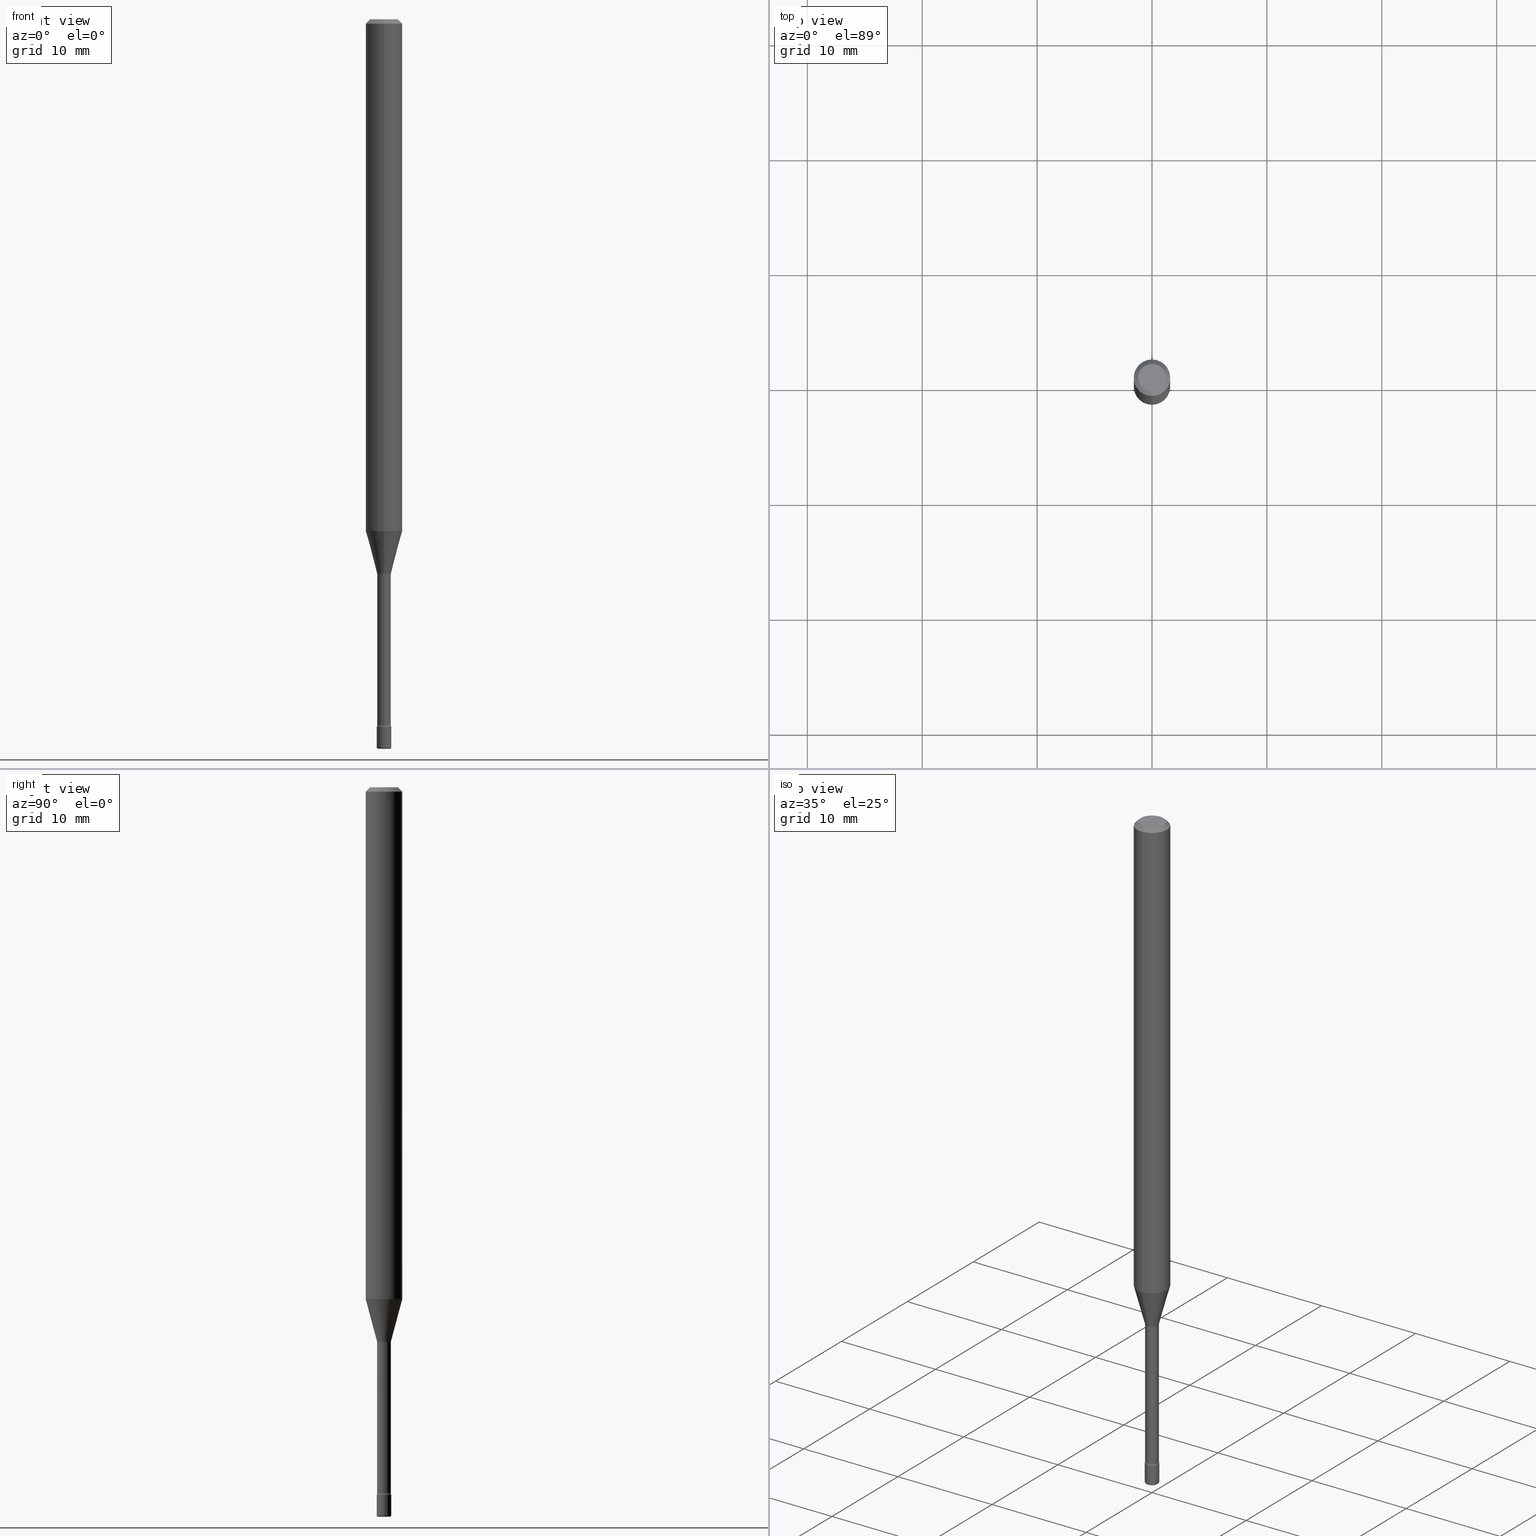
[diagram: canonical four-view strip — front | top / right | iso, engineering-drawing reading convention]
A machine part, canonical four-view strip (front | top / right | iso — engineering-drawing reading convention). The complete STEP part file that produces these views, byte-faithful:
ISO-10303-21;
HEADER;
FILE_DESCRIPTION (( 'STEP AP203' ),
    '1' );
FILE_NAME ('08814.STEP',
    '2024-03-06T20:03:34',
    ( '' ),
    ( '' ),
    'SwSTEP 2.0',
    'SolidWorks 2023',
    '' );
FILE_SCHEMA (( 'CONFIG_CONTROL_DESIGN' ));
ENDSEC;

DATA;
#1 = DIRECTION ( 'NONE',  ( -6.982962677686265133E-15, -1.000000000000000000, 0.000000000000000000 ) ) ;
#2 = DIRECTION ( 'NONE',  ( -2.445458409573931244E-29, 3.491496227382129512E-15, 1.000000000000000000 ) ) ;
#3 = ADVANCED_FACE ( 'NONE', ( #251 ), #265, .F. ) ;
#4 = FACE_OUTER_BOUND ( 'NONE', #191, .T. ) ;
#5 = EDGE_CURVE ( 'NONE', #472, #345, #359, .T. ) ;
#6 = CONICAL_SURFACE ( 'NONE', #190, 0.02401111260566398189, 0.2617993877991502960 ) ;
#7 = CARTESIAN_POINT ( 'NONE',  ( 4.651200238800969126E-29, -6.640737795005825255E-15, -1.901974787463811323 ) ) ;
#8 = CARTESIAN_POINT ( 'NONE',  ( 3.668187614360904294E-31, -5.237244341073204376E-17, -0.01500000000000002720 ) ) ;
#9 = DIRECTION ( 'NONE',  ( -6.982962677686265133E-15, -1.000000000000000000, 0.000000000000000000 ) ) ;
#10 = LINE ( 'NONE', #97, #153 ) ;
#11 = AXIS2_PLACEMENT_3D ( 'NONE', #54, #220, #9 ) ;
#12 = CC_DESIGN_PERSON_AND_ORGANIZATION_ASSIGNMENT ( #76, #197, ( #111 ) ) ;
#13 = AXIS2_PLACEMENT_3D ( 'NONE', #258, #533, #529 ) ;
#14 = CIRCLE ( 'NONE', #536, 0.02350000000000000352 ) ;
#15 = DIMENSIONAL_EXPONENTS ( 1.000000000000000000, 0.000000000000000000, 0.000000000000000000, 0.000000000000000000, 0.000000000000000000, 0.000000000000000000, 0.000000000000000000 ) ;
#16 = ADVANCED_FACE ( 'NONE', ( #83 ), #531, .T. ) ;
#17 = VERTEX_POINT ( 'NONE', #524 ) ;
#18 = EDGE_CURVE ( 'NONE', #343, #204, #222, .T. ) ;
#19 = EDGE_LOOP ( 'NONE', ( #239, #75, #296, #341 ) ) ;
#20 = VECTOR ( 'NONE', #506, 39.37007874015748143 ) ;
#21 = LOCAL_TIME ( 15, 3, 34.00000000000000000, #562 ) ;
#22 = CARTESIAN_POINT ( 'NONE',  ( 4.651220012893355916E-29, -6.640709477380055554E-15, -1.901974787463811323 ) ) ;
#23 = VERTEX_POINT ( 'NONE', #123 ) ;
#24 = ADVANCED_FACE ( 'NONE', ( #167 ), #430, .F. ) ;
#25 = ORIENTED_EDGE ( 'NONE', *, *, #495, .F. ) ;
#26 = DIRECTION ( 'NONE',  ( 4.937700262164546464E-15, 0.7071067811865449082, -0.7071067811865501263 ) ) ;
#27 = CARTESIAN_POINT ( 'NONE',  ( 6.101444671431917961E-29, -8.711245940413649907E-15, -2.495000000000000551 ) ) ;
#28 = ORIENTED_EDGE ( 'NONE', *, *, #470, .T. ) ;
#29 = DIRECTION ( 'NONE',  ( -2.445468806185136597E-29, 3.491481338843145583E-15, 1.000000000000000000 ) ) ;
#30 = CARTESIAN_POINT ( 'NONE',  ( -0.02000000000000000042, -8.560102528214734347E-15, -2.499999999999999556 ) ) ;
#31 = VERTEX_POINT ( 'NONE', #353 ) ;
#32 = CONICAL_SURFACE ( 'NONE', #501, 0.06250000000000000000, 0.7853981633974480570 ) ;
#33 = PERSON_AND_ORGANIZATION ( #66, #128 ) ;
#34 = DIRECTION ( 'NONE',  ( -2.445458409573931525E-29, 3.491496227382129512E-15, 1.000000000000000000 ) ) ;
#35 = DIRECTION ( 'NONE',  ( 7.105427357601001859E-15, 1.000000000000000000, 0.000000000000000000 ) ) ;
#36 = DIRECTION ( 'NONE',  ( -2.445458409573931525E-29, 3.491496227382129512E-15, 1.000000000000000000 ) ) ;
#37 = APPROVAL ( #340, 'UNSPECIFIED' ) ;
#38 = APPROVAL_STATUS ( 'not_yet_approved' ) ;
#39 = CARTESIAN_POINT ( 'NONE',  ( 3.316907271900976589E-16, 0.04750000000000000749, 5.964638864920299197E-17 ) ) ;
#40 = AXIS2_PLACEMENT_3D ( 'NONE', #27, #323, #233 ) ;
#41 = CALENDAR_DATE ( 2024, 6, 3 ) ;
#42 = CIRCLE ( 'NONE', #40, 0.02499999999999999792 ) ;
#43 = ADVANCED_FACE ( 'NONE', ( #165 ), #295, .F. ) ;
#44 = DIRECTION ( 'NONE',  ( -2.445458409573931525E-29, 3.491496227382129512E-15, 1.000000000000000000 ) ) ;
#45 = DIRECTION ( 'NONE',  ( -2.445468806185136597E-29, 3.491481338843145583E-15, 1.000000000000000000 ) ) ;
#46 = EDGE_CURVE ( 'NONE', #151, #449, #460, .T. ) ;
#47 = DIRECTION ( 'NONE',  ( 6.982962677686265922E-15, 1.000000000000000000, -3.491496227382129512E-15 ) ) ;
#48 = CARTESIAN_POINT ( 'NONE',  ( 6.113672015462840371E-29, -8.728703347107863365E-15, -2.499999999999999556 ) ) ;
#49 = DIRECTION ( 'NONE',  ( -6.982962677686265922E-15, -1.000000000000000000, 0.000000000000000000 ) ) ;
#50 = ORIENTED_EDGE ( 'NONE', *, *, #125, .T. ) ;
#51 = ORIENTED_EDGE ( 'NONE', *, *, #518, .T. ) ;
#52 = EDGE_CURVE ( 'NONE', #472, #23, #210, .T. ) ;
#53 = ORIENTED_EDGE ( 'NONE', *, *, #402, .F. ) ;
#54 = CARTESIAN_POINT ( 'NONE',  ( 4.641706270644910592E-29, -6.627182809212572482E-15, -1.898092501787273401 ) ) ;
#55 = CARTESIAN_POINT ( 'NONE',  ( -4.287811248607203282E-16, -0.06250000000000005551, -0.01499999999999981036 ) ) ;
#56 = CARTESIAN_POINT ( 'NONE',  ( -0.02500000000000000139, -8.411408409614115509E-15, -2.425000000000000266 ) ) ;
#57 = MECHANICAL_CONTEXT ( 'NONE', #89, 'mechanical' ) ;
#58 = AXIS2_PLACEMENT_3D ( 'NONE', #266, #357, #535 ) ;
#59 = AXIS2_PLACEMENT_3D ( 'NONE', #60, #410, #224 ) ;
#60 = CARTESIAN_POINT ( 'NONE',  ( -1.169113584055446105E-44, 1.669184350826100908E-30, 4.780733988912460139E-16 ) ) ;
#61 = CIRCLE ( 'NONE', #11, 0.02401111260566398189 ) ;
#62 = EDGE_LOOP ( 'NONE', ( #166, #65 ) ) ;
#63 = CARTESIAN_POINT ( 'NONE',  ( 3.668187614360904294E-31, -5.237244341073204376E-17, -0.01500000000000002720 ) ) ;
#64 = EDGE_CURVE ( 'NONE', #419, #406, #154, .T. ) ;
#65 = ORIENTED_EDGE ( 'NONE', *, *, #465, .F. ) ;
#66 = PERSON ( 'UNSPECIFIED', 'UNSPECIFIED', 'UNSPECIFIED', ('UNSPECIFIED'), ('UNSPECIFIED'), ('UNSPECIFIED') ) ;
#67 = DIRECTION ( 'NONE',  ( -6.982962677686265922E-15, -1.000000000000000000, 3.491496227382129512E-15 ) ) ;
#68 = CARTESIAN_POINT ( 'NONE',  ( 4.440892098500625669E-16, 0.06250000000000000000, 2.598548846798629687E-16 ) ) ;
#69 = AXIS2_PLACEMENT_3D ( 'NONE', #261, #484, #428 ) ;
#70 = ORIENTED_EDGE ( 'NONE', *, *, #18, .T. ) ;
#71 = CIRCLE ( 'NONE', #182, 0.004999999999999767651 ) ;
#72 = VERTEX_POINT ( 'NONE', #127 ) ;
#73 = EDGE_CURVE ( 'NONE', #204, #345, #476, .T. ) ;
#74 = DIRECTION ( 'NONE',  ( 1.000000000000000000, -6.982962677686284065E-15, 0.000000000000000000 ) ) ;
#75 = ORIENTED_EDGE ( 'NONE', *, *, #546, .T. ) ;
#76 = PERSON_AND_ORGANIZATION ( #66, #128 ) ;
#77 = DIRECTION ( 'NONE',  ( -2.445468806185136597E-29, 3.491481338843145583E-15, 1.000000000000000000 ) ) ;
#78 = CYLINDRICAL_SURFACE ( 'NONE', #395, 0.02349999999999997230 ) ;
#79 = SECURITY_CLASSIFICATION ( '', '', #380 ) ;
#80 = CIRCLE ( 'NONE', #100, 0.02500000000000000139 ) ;
#81 = CARTESIAN_POINT ( 'NONE',  ( 2.735589532676850122E-16, 0.03849999999999335204, -1.901974787463811323 ) ) ;
#82 = PERSON_AND_ORGANIZATION ( #66, #128 ) ;
#83 = FACE_OUTER_BOUND ( 'NONE', #147, .T. ) ;
#84 = CC_DESIGN_DATE_AND_TIME_ASSIGNMENT ( #418, #242, ( #385 ) ) ;
#85 = ORIENTED_EDGE ( 'NONE', *, *, #18, .F. ) ;
#86 = DIRECTION ( 'NONE',  ( -2.445458409573931525E-29, 3.491496227382129512E-15, 1.000000000000000000 ) ) ;
#87 = CARTESIAN_POINT ( 'NONE',  ( -1.640996229256270547E-16, -0.02349999999999997230, 5.601235602347259253E-16 ) ) ;
#88 = DIRECTION ( 'NONE',  ( -2.445468806185136597E-29, 3.491481338843145583E-15, 1.000000000000000000 ) ) ;
#89 = APPLICATION_CONTEXT ( 'configuration controlled 3d designs of mechanical parts and assemblies' ) ;
#90 = DIRECTION ( 'NONE',  ( -6.982962677686265133E-15, -1.000000000000000000, 3.491496227382129118E-15 ) ) ;
#91 = TOROIDAL_SURFACE ( 'NONE', #461, 0.03849999999999999256, 0.01500000000000001853 ) ;
#92 = ADVANCED_FACE ( 'NONE', ( #304 ), #305, .T. ) ;
#93 = AXIS2_PLACEMENT_3D ( 'NONE', #338, #500, #451 ) ;
#94 = FACE_OUTER_BOUND ( 'NONE', #19, .T. ) ;
#95 = ORIENTED_EDGE ( 'NONE', *, *, #437, .T. ) ;
#96 = AXIS2_PLACEMENT_3D ( 'NONE', #7, #315, #438 ) ;
#97 = CARTESIAN_POINT ( 'NONE',  ( 1.669775429036233222E-16, 0.02349999999999997230, 3.960232375477661025E-16 ) ) ;
#98 = DIRECTION ( 'NONE',  ( 2.445458409573931525E-29, -3.491496227382129512E-15, -1.000000000000000000 ) ) ;
#99 = LOCAL_TIME ( 15, 3, 34.00000000000000000, #234 ) ;
#100 = AXIS2_PLACEMENT_3D ( 'NONE', #184, #226, #322 ) ;
#101 = DIRECTION ( 'NONE',  ( -6.982962677686265922E-15, -1.000000000000000000, 4.370956789862821150E-15 ) ) ;
#102 = ORIENTED_EDGE ( 'NONE', *, *, #217, .T. ) ;
#103 = COORDINATED_UNIVERSAL_TIME_OFFSET ( 5, 0, .BEHIND. ) ;
#104 = ORIENTED_EDGE ( 'NONE', *, *, #173, .T. ) ;
#105 = CARTESIAN_POINT ( 'NONE',  ( -1.676687031750273969E-16, -0.02401111260567060854, -1.898092501787273401 ) ) ;
#106 = EDGE_LOOP ( 'NONE', ( #185, #279, #107, #339 ) ) ;
#107 = ORIENTED_EDGE ( 'NONE', *, *, #200, .F. ) ;
#108 = CARTESIAN_POINT ( 'NONE',  ( 5.930261854998957144E-29, -8.466842246694628363E-15, -2.425000000000000266 ) ) ;
#109 = CIRCLE ( 'NONE', #136, 0.06250000000000000000 ) ;
#110 = EDGE_LOOP ( 'NONE', ( #195, #51, #219, #497 ) ) ;
#111 = PRODUCT_DEFINITION_FORMATION_WITH_SPECIFIED_SOURCE ( 'ANY', '', #241, .NOT_KNOWN. ) ;
#112 = ADVANCED_FACE ( 'NONE', ( #94 ), #435, .T. ) ;
#113 = ORIENTED_EDGE ( 'NONE', *, *, #532, .T. ) ;
#114 = DIRECTION ( 'NONE',  ( -2.445458409573931525E-29, 3.491496227382129512E-15, 1.000000000000000000 ) ) ;
#115 = ORIENTED_EDGE ( 'NONE', *, *, #437, .F. ) ;
#116 = DIRECTION ( 'NONE',  ( -2.445458409573931525E-29, 3.491496227382129512E-15, 1.000000000000000000 ) ) ;
#117 = CARTESIAN_POINT ( 'NONE',  ( 0.02500000000000000139, -8.641416313636785031E-15, -2.425000000000000266 ) ) ;
#118 = APPROVAL_ROLE ( '' ) ;
#119 = ORIENTED_EDGE ( 'NONE', *, *, #137, .F. ) ;
#120 = ADVANCED_FACE ( 'NONE', ( #4 ), #444, .T. ) ;
#121 = DIRECTION ( 'NONE',  ( -6.982962677686266711E-15, -1.000000000000000000, 0.000000000000000000 ) ) ;
#122 = EDGE_LOOP ( 'NONE', ( #95, #492, #53, #458 ) ) ;
#123 = CARTESIAN_POINT ( 'NONE',  ( 3.073492131224375317E-16, 0.02401111260565734831, -1.898092501787273401 ) ) ;
#124 = DIRECTION ( 'NONE',  ( -6.982962677686265922E-15, -1.000000000000000000, 3.491496227382129512E-15 ) ) ;
#125 = EDGE_CURVE ( 'NONE', #141, #17, #181, .T. ) ;
#126 = DIRECTION ( 'NONE',  ( -6.982962677686266711E-15, -1.000000000000000000, 0.000000000000000000 ) ) ;
#127 = CARTESIAN_POINT ( 'NONE',  ( 0.02499999999999988343, -8.885820007355804997E-15, -2.495000000000000551 ) ) ;
#128 = ORGANIZATION ( 'UNSPECIFIED', 'UNSPECIFIED', '' ) ;
#129 = CARTESIAN_POINT ( 'NONE',  ( 5.914272527905343055E-29, -8.444013725215714647E-15, -2.418461651584689065 ) ) ;
#130 = EDGE_CURVE ( 'NONE', #343, #161, #231, .T. ) ;
#131 = CARTESIAN_POINT ( 'NONE',  ( 2.735589532676978805E-16, 0.03849999999999158956, -2.418461651584689065 ) ) ;
#132 = EDGE_CURVE ( 'NONE', #369, #419, #491, .T. ) ;
#133 = CIRCLE ( 'NONE', #523, 0.02499999999999999792 ) ;
#134 = CC_DESIGN_APPROVAL ( #37, ( #79 ) ) ;
#135 = AXIS2_PLACEMENT_3D ( 'NONE', #129, #44, #207 ) ;
#136 = AXIS2_PLACEMENT_3D ( 'NONE', #511, #547, #101 ) ;
#137 = EDGE_CURVE ( 'NONE', #449, #188, #213, .T. ) ;
#138 = EDGE_LOOP ( 'NONE', ( #177, #70, #248, #508 ) ) ;
#139 = AXIS2_PLACEMENT_3D ( 'NONE', #467, #554, #337 ) ;
#140 = DIRECTION ( 'NONE',  ( -2.445458409573931525E-29, 3.491496227382129512E-15, 1.000000000000000000 ) ) ;
#141 = VERTEX_POINT ( 'NONE', #316 ) ;
#142 = DIRECTION ( 'NONE',  ( -2.445468806185136597E-29, 3.491481338843145583E-15, 1.000000000000000000 ) ) ;
#143 = CALENDAR_DATE ( 2024, 6, 3 ) ;
#144 = ADVANCED_FACE ( 'NONE', ( #352 ), #32, .T. ) ;
#145 = CARTESIAN_POINT ( 'NONE',  ( -3.773273898774340269E-16, -0.04750000000000000749, 1.387575908091134551E-16 ) ) ;
#146 = ORIENTED_EDGE ( 'NONE', *, *, #307, .F. ) ;
#147 = EDGE_LOOP ( 'NONE', ( #25, #50, #104, #187 ) ) ;
#148 = DIRECTION ( 'NONE',  ( 1.000000000000000000, -6.982962677686075017E-15, 0.000000000000000000 ) ) ;
#149 = ORIENTED_EDGE ( 'NONE', *, *, #137, .T. ) ;
#150 = PRODUCT_DEFINITION_SHAPE ( 'NONE', 'NONE',  #385 ) ;
#151 = VERTEX_POINT ( 'NONE', #384 ) ;
#152 = CARTESIAN_POINT ( 'NONE',  ( 4.651220012893355916E-29, -6.640709477380055554E-15, -1.901974787463811323 ) ) ;
#153 = VECTOR ( 'NONE', #485, 39.37007874015748143 ) ;
#154 = CIRCLE ( 'NONE', #313, 0.004999999999999767651 ) ;
#155 = CIRCLE ( 'NONE', #483, 0.02500000000000000139 ) ;
#156 = ADVANCED_FACE ( 'NONE', ( #297 ), #6, .T. ) ;
#157 = ORIENTED_EDGE ( 'NONE', *, *, #217, .F. ) ;
#158 = CARTESIAN_POINT ( 'NONE',  ( 0.000000000000000000, 0.000000000000000000, 0.000000000000000000 ) ) ;
#159 = ORIENTED_EDGE ( 'NONE', *, *, #171, .F. ) ;
#160 = FACE_OUTER_BOUND ( 'NONE', #110, .T. ) ;
#161 = VERTEX_POINT ( 'NONE', #249 ) ;
#162 = EDGE_CURVE ( 'NONE', #472, #17, #568, .T. ) ;
#163 = DATE_AND_TIME ( #209, #198 ) ;
#164 = DIRECTION ( 'NONE',  ( -6.982962677686265922E-15, -1.000000000000000000, 3.491496227382127935E-15 ) ) ;
#165 = FACE_OUTER_BOUND ( 'NONE', #62, .T. ) ;
#166 = ORIENTED_EDGE ( 'NONE', *, *, #426, .F. ) ;
#167 = FACE_OUTER_BOUND ( 'NONE', #365, .T. ) ;
#168 = AXIS2_PLACEMENT_3D ( 'NONE', #539, #489, #267 ) ;
#169 = EDGE_LOOP ( 'NONE', ( #230, #272, #409, #505 ) ) ;
#170 = CIRCLE ( 'NONE', #232, 0.06250000000000000000 ) ;
#171 = EDGE_CURVE ( 'NONE', #204, #343, #569, .T. ) ;
#172 = CARTESIAN_POINT ( 'NONE',  ( 4.641706270644910592E-29, -6.627182809212572482E-15, -1.898092501787273401 ) ) ;
#173 = EDGE_CURVE ( 'NONE', #17, #188, #302, .T. ) ;
#174 = DIRECTION ( 'NONE',  ( 7.105427357601001859E-15, 1.000000000000000000, 0.000000000000000000 ) ) ;
#175 = AXIS2_PLACEMENT_3D ( 'NONE', #301, #479, #90 ) ;
#176 = APPLICATION_PROTOCOL_DEFINITION ( 'international standard', 'config_control_design', 1994, #89 ) ;
#177 = ORIENTED_EDGE ( 'NONE', *, *, #546, .F. ) ;
#178 = CC_DESIGN_PERSON_AND_ORGANIZATION_ASSIGNMENT ( #82, #300, ( #385 ) ) ;
#179 =( NAMED_UNIT ( * ) SI_UNIT ( $, .STERADIAN. ) SOLID_ANGLE_UNIT ( ) );
#180 = CARTESIAN_POINT ( 'NONE',  ( 5.930261854998957144E-29, -8.466842246694628363E-15, -2.425000000000000266 ) ) ;
#181 = CIRCLE ( 'NONE', #13, 0.06250000000000000000 ) ;
#182 = AXIS2_PLACEMENT_3D ( 'NONE', #328, #201, #148 ) ;
#183 = ADVANCED_FACE ( 'NONE', ( #325 ), #496, .T. ) ;
#184 = CARTESIAN_POINT ( 'NONE',  ( 5.930261854998957144E-29, -8.466842246694628363E-15, -2.425000000000000266 ) ) ;
#185 = ORIENTED_EDGE ( 'NONE', *, *, #503, .T. ) ;
#186 = DIRECTION ( 'NONE',  ( -6.982962677686265922E-15, -1.000000000000000000, 3.491496227382129512E-15 ) ) ;
#187 = ORIENTED_EDGE ( 'NONE', *, *, #532, .F. ) ;
#188 = VERTEX_POINT ( 'NONE', #228 ) ;
#189 = LOCAL_TIME ( 15, 3, 34.00000000000000000, #431 ) ;
#190 = AXIS2_PLACEMENT_3D ( 'NONE', #350, #86, #1 ) ;
#191 = EDGE_LOOP ( 'NONE', ( #245, #276 ) ) ;
#192 = DIRECTION ( 'NONE',  ( -6.982962677686266711E-15, -1.000000000000000000, 3.491496227382129118E-15 ) ) ;
#193 = ORIENTED_EDGE ( 'NONE', *, *, #46, .T. ) ;
#194 = FACE_OUTER_BOUND ( 'NONE', #374, .T. ) ;
#195 = ORIENTED_EDGE ( 'NONE', *, *, #556, .F. ) ;
#196 = CARTESIAN_POINT ( 'NONE',  ( -1.640996229255807584E-16, -0.02350000000000664405, -1.901974787463811323 ) ) ;
#197 = PERSON_AND_ORGANIZATION_ROLE ( 'creator' ) ;
#198 = LOCAL_TIME ( 15, 3, 34.00000000000000000, #212 ) ;
#199 = AXIS2_PLACEMENT_3D ( 'NONE', #172, #34, #247 ) ;
#200 = EDGE_CURVE ( 'NONE', #284, #336, #80, .T. ) ;
#201 = DIRECTION ( 'NONE',  ( -6.982962677686266711E-15, -1.000000000000000000, 3.491481338843145583E-15 ) ) ;
#202 = PERSON_AND_ORGANIZATION_ROLE ( 'design_supplier' ) ;
#203 = DIRECTION ( 'NONE',  ( -2.445458409573931525E-29, 3.491496227382129512E-15, 1.000000000000000000 ) ) ;
#204 = VERTEX_POINT ( 'NONE', #318 ) ;
#205 = FACE_OUTER_BOUND ( 'NONE', #169, .T. ) ;
#206 = APPROVAL_STATUS ( 'not_yet_approved' ) ;
#207 = DIRECTION ( 'NONE',  ( -6.982962677686266711E-15, -1.000000000000000000, 3.491496227382129118E-15 ) ) ;
#208 = DIRECTION ( 'NONE',  ( 1.000000000000000000, -6.982962677686265922E-15, 4.876176775795936353E-29 ) ) ;
#209 = CALENDAR_DATE ( 2024, 6, 3 ) ;
#210 = CIRCLE ( 'NONE', #199, 0.02401111260566398189 ) ;
#211 = AXIS2_PLACEMENT_3D ( 'NONE', #331, #462, #416 ) ;
#212 = COORDINATED_UNIVERSAL_TIME_OFFSET ( 5, 0, .BEHIND. ) ;
#213 = LINE ( 'NONE', #55, #515 ) ;
#214 = CARTESIAN_POINT ( 'NONE',  ( -1.169113584055446105E-44, 1.669184350826100908E-30, 4.780733988912460139E-16 ) ) ;
#215 =( NAMED_UNIT ( * ) PLANE_ANGLE_UNIT ( ) SI_UNIT ( $, .RADIAN. ) );
#216 = ORIENTED_EDGE ( 'NONE', *, *, #259, .T. ) ;
#217 = EDGE_CURVE ( 'NONE', #23, #141, #498, .T. ) ;
#218 = AXIS2_PLACEMENT_3D ( 'NONE', #39, #344, #47 ) ;
#219 = ORIENTED_EDGE ( 'NONE', *, *, #303, .T. ) ;
#220 = DIRECTION ( 'NONE',  ( -2.445458409573931525E-29, 3.491496227382129512E-15, 1.000000000000000000 ) ) ;
#221 = TOROIDAL_SURFACE ( 'NONE', #571, 0.02000000000000000042, 0.004999999999999767651 ) ;
#222 = CIRCLE ( 'NONE', #347, 0.02349999999999994107 ) ;
#223 = CIRCLE ( 'NONE', #314, 0.02500000000000000139 ) ;
#224 = DIRECTION ( 'NONE',  ( -6.982962677686265922E-15, -1.000000000000000000, 3.491496227382130301E-15 ) ) ;
#225 = ORIENTED_EDGE ( 'NONE', *, *, #363, .F. ) ;
#226 = DIRECTION ( 'NONE',  ( -2.445468806185136597E-29, 3.491481338843145583E-15, 1.000000000000000000 ) ) ;
#227 = ORIENTED_EDGE ( 'NONE', *, *, #200, .T. ) ;
#228 = CARTESIAN_POINT ( 'NONE',  ( -4.364351673553912750E-16, -0.06250000000000005551, -0.01499999999999981036 ) ) ;
#229 = CC_DESIGN_DATE_AND_TIME_ASSIGNMENT ( #282, #510, ( #79 ) ) ;
#230 = ORIENTED_EDGE ( 'NONE', *, *, #132, .T. ) ;
#231 = CIRCLE ( 'NONE', #440, 0.01500000000000008792 ) ;
#232 = AXIS2_PLACEMENT_3D ( 'NONE', #8, #386, #268 ) ;
#233 = DIRECTION ( 'NONE',  ( 1.000000000000000000, -6.982962677686295110E-15, 0.000000000000000000 ) ) ;
#234 = COORDINATED_UNIVERSAL_TIME_OFFSET ( 5, 0, .BEHIND. ) ;
#235 = ADVANCED_FACE ( 'NONE', ( #471 ), #78, .T. ) ;
#236 = EDGE_LOOP ( 'NONE', ( #548, #288, #439, #394 ) ) ;
#237 = DIRECTION ( 'NONE',  ( -2.445458409573931525E-29, 3.491496227382129512E-15, 1.000000000000000000 ) ) ;
#238 = CARTESIAN_POINT ( 'NONE',  ( 5.930236643216784858E-29, -8.466878351401663377E-15, -2.425000000000000266 ) ) ;
#239 = ORIENTED_EDGE ( 'NONE', *, *, #171, .T. ) ;
#240 = DIRECTION ( 'NONE',  ( 1.839019923739601104E-15, 0.2588190451025250693, 0.9659258262890670910 ) ) ;
#241 = PRODUCT ( '08814', '08814', '', ( #57 ) ) ;
#242 = DATE_TIME_ROLE ( 'creation_date' ) ;
#243 = CARTESIAN_POINT ( 'NONE',  ( 0.000000000000000000, 0.000000000000000000, 0.000000000000000000 ) ) ;
#244 = CARTESIAN_POINT ( 'NONE',  ( 5.914247384099837536E-29, -8.444049732576294748E-15, -2.418461651584689065 ) ) ;
#245 = ORIENTED_EDGE ( 'NONE', *, *, #132, .F. ) ;
#246 = DIRECTION ( 'NONE',  ( 1.000000000000000000, -7.105427357601001070E-15, 4.926315690874098650E-29 ) ) ;
#247 = DIRECTION ( 'NONE',  ( -6.982962677686265133E-15, -1.000000000000000000, 0.000000000000000000 ) ) ;
#248 = ORIENTED_EDGE ( 'NONE', *, *, #73, .T. ) ;
#249 = CARTESIAN_POINT ( 'NONE',  ( 1.776356839400846646E-16, 0.02499999999999158104, -2.425000000000000266 ) ) ;
#250 = CYLINDRICAL_SURFACE ( 'NONE', #408, 0.02499999999999999792 ) ;
#251 = FACE_OUTER_BOUND ( 'NONE', #403, .T. ) ;
#252 = DIRECTION ( 'NONE',  ( -2.445458409573931525E-29, 3.491496227382129512E-15, 1.000000000000000000 ) ) ;
#253 = CARTESIAN_POINT ( 'NONE',  ( 0.02000000000000000042, -8.868362600661588384E-15, -2.499999999999999556 ) ) ;
#254 = ADVANCED_FACE ( 'NONE', ( #160 ), #285, .T. ) ;
#255 = PERSON_AND_ORGANIZATION ( #66, #128 ) ;
#256 = AXIS2_PLACEMENT_3D ( 'NONE', #545, #549, #509 ) ;
#257 = CIRCLE ( 'NONE', #256, 0.01500000000000008792 ) ;
#258 = CARTESIAN_POINT ( 'NONE',  ( 4.290434551929739000E-29, -6.125655620740067716E-15, -1.754450018504814635 ) ) ;
#259 = EDGE_CURVE ( 'NONE', #151, #281, #519, .T. ) ;
#260 = DIRECTION ( 'NONE',  ( -2.445458409573931525E-29, 3.491496227382129512E-15, 1.000000000000000000 ) ) ;
#261 = CARTESIAN_POINT ( 'NONE',  ( 3.668187614360904294E-31, -5.237244341073204376E-17, -0.01500000000000002720 ) ) ;
#262 = CARTESIAN_POINT ( 'NONE',  ( -0.02499999999999999792, 1.776356839400250317E-16, -1.229733772563726480E-30 ) ) ;
#263 = ADVANCED_FACE ( 'NONE', ( #415 ), #368, .T. ) ;
#264 =( CONVERSION_BASED_UNIT ( 'INCH', #534 ) LENGTH_UNIT ( ) NAMED_UNIT ( #15 ) );
#265 = TOROIDAL_SURFACE ( 'NONE', #135, 0.03850000000000002726, 0.01500000000000008965 ) ;
#266 = CARTESIAN_POINT ( 'NONE',  ( 0.000000000000000000, 0.000000000000000000, 0.000000000000000000 ) ) ;
#267 = DIRECTION ( 'NONE',  ( -1.000000000000000000, 6.982962677686265922E-15, -4.876176775795935793E-29 ) ) ;
#268 = DIRECTION ( 'NONE',  ( -6.982962677686265922E-15, -1.000000000000000000, 3.483106191921935554E-15 ) ) ;
#269 = ADVANCED_FACE ( 'NONE', ( #372 ), #433, .F. ) ;
#270 = CARTESIAN_POINT ( 'NONE',  ( 1.723066134218835880E-16, 0.02349999999999149991, -2.418461651584689065 ) ) ;
#271 = AXIS2_PLACEMENT_3D ( 'NONE', #48, #45, #311 ) ;
#272 = ORIENTED_EDGE ( 'NONE', *, *, #64, .T. ) ;
#273 = FACE_OUTER_BOUND ( 'NONE', #563, .T. ) ;
#274 = EDGE_LOOP ( 'NONE', ( #157, #521, #330, #355 ) ) ;
#275 = EDGE_CURVE ( 'NONE', #369, #72, #71, .T. ) ;
#276 = ORIENTED_EDGE ( 'NONE', *, *, #470, .F. ) ;
#277 = CALENDAR_DATE ( 2024, 6, 3 ) ;
#278 = MANIFOLD_SOLID_BREP ( 'Body-Move/Copy2[2]', #354 ) ;
#279 = ORIENTED_EDGE ( 'NONE', *, *, #556, .T. ) ;
#280 = VECTOR ( 'NONE', #373, 39.37007874015748143 ) ;
#281 = VERTEX_POINT ( 'NONE', #558 ) ;
#282 = DATE_AND_TIME ( #277, #99 ) ;
#283 = ADVANCED_FACE ( 'NONE', ( #205 ), #221, .T. ) ;
#284 = VERTEX_POINT ( 'NONE', #117 ) ;
#285 = CYLINDRICAL_SURFACE ( 'NONE', #294, 0.02499999999999999792 ) ;
#286 = DIRECTION ( 'NONE',  ( -6.982962677686265133E-15, -1.000000000000000000, 0.000000000000000000 ) ) ;
#287 = DESIGN_CONTEXT ( 'detailed design', #356, 'design' ) ;
#288 = ORIENTED_EDGE ( 'NONE', *, *, #391, .T. ) ;
#289 = CARTESIAN_POINT ( 'NONE',  ( 0.02499999999999999792, -1.745740669421566431E-16, 1.219044193948983948E-30 ) ) ;
#290 = DATE_AND_TIME ( #41, #189 ) ;
#291 = VERTEX_POINT ( 'NONE', #463 ) ;
#292 = CARTESIAN_POINT ( 'NONE',  ( 1.706092163947695036E-16, 0.02401111260565735178, -1.898092501787273401 ) ) ;
#293 = APPROVAL_ROLE ( '' ) ;
#294 = AXIS2_PLACEMENT_3D ( 'NONE', #243, #29, #379 ) ;
#295 = PLANE ( 'NONE',  #377 ) ;
#296 = ORIENTED_EDGE ( 'NONE', *, *, #321, .F. ) ;
#297 = FACE_OUTER_BOUND ( 'NONE', #274, .T. ) ;
#298 = DIRECTION ( 'NONE',  ( -6.982962677686267499E-15, -1.000000000000000000, 0.000000000000000000 ) ) ;
#299 = CARTESIAN_POINT ( 'NONE',  ( -1.676687031750273969E-16, -0.02401111260567060854, -1.898092501787273401 ) ) ;
#300 = PERSON_AND_ORGANIZATION_ROLE ( 'creator' ) ;
#301 = CARTESIAN_POINT ( 'NONE',  ( 6.623878085462541479E-46, -9.458644351040681169E-32, -2.708847999153772815E-17 ) ) ;
#302 = LINE ( 'NONE', #540, #20 ) ;
#303 = EDGE_CURVE ( 'NONE', #72, #284, #412, .T. ) ;
#304 = FACE_OUTER_BOUND ( 'NONE', #567, .T. ) ;
#305 = CONICAL_SURFACE ( 'NONE', #69, 0.06250000000000000000, 0.7853981633974480570 ) ;
#306 = AXIS2_PLACEMENT_3D ( 'NONE', #63, #260, #466 ) ;
#307 = EDGE_CURVE ( 'NONE', #204, #291, #257, .T. ) ;
#308 = DIRECTION ( 'NONE',  ( -2.445458409573931525E-29, 3.491496227382129512E-15, 1.000000000000000000 ) ) ;
#309 = DIRECTION ( 'NONE',  ( -6.982962677686265922E-15, -1.000000000000000000, 3.491496227382130301E-15 ) ) ;
#310 = ORIENTED_EDGE ( 'NONE', *, *, #130, .T. ) ;
#311 = DIRECTION ( 'NONE',  ( 1.000000000000000000, -6.982962677686284065E-15, 0.000000000000000000 ) ) ;
#312 = ORIENTED_EDGE ( 'NONE', *, *, #64, .F. ) ;
#313 = AXIS2_PLACEMENT_3D ( 'NONE', #351, #528, #382 ) ;
#314 = AXIS2_PLACEMENT_3D ( 'NONE', #108, #459, #443 ) ;
#315 = DIRECTION ( 'NONE',  ( -2.445458409573931525E-29, 3.491496227382129512E-15, 1.000000000000000000 ) ) ;
#316 = CARTESIAN_POINT ( 'NONE',  ( 4.440892098501052147E-16, 0.06249999999999384520, -1.754450018504814857 ) ) ;
#317 = EDGE_CURVE ( 'NONE', #336, #284, #223, .T. ) ;
#318 = CARTESIAN_POINT ( 'NONE',  ( -1.640996229255677176E-16, -0.02350000000000838571, -2.418461651584689065 ) ) ;
#319 = ORIENTED_EDGE ( 'NONE', *, *, #162, .F. ) ;
#320 = VECTOR ( 'NONE', #26, 39.37007874015748143 ) ;
#321 = EDGE_CURVE ( 'NONE', #345, #31, #14, .T. ) ;
#322 = DIRECTION ( 'NONE',  ( 1.000000000000000000, -6.982962677686254878E-15, 0.000000000000000000 ) ) ;
#323 = DIRECTION ( 'NONE',  ( -2.445468806185136597E-29, 3.491481338843145583E-15, 1.000000000000000000 ) ) ;
#324 = DIRECTION ( 'NONE',  ( 1.000000000000000000, -6.982962677686280910E-15, 4.883557194083118506E-29 ) ) ;
#325 = FACE_OUTER_BOUND ( 'NONE', #122, .T. ) ;
#326 = CARTESIAN_POINT ( 'NONE',  ( 6.113672015462840371E-29, -8.728703347107863365E-15, -2.499999999999999556 ) ) ;
#327 = ORIENTED_EDGE ( 'NONE', *, *, #391, .F. ) ;
#328 = CARTESIAN_POINT ( 'NONE',  ( 0.02000000000000000042, -8.850905193967373348E-15, -2.495000000000000107 ) ) ;
#329 = PERSON_AND_ORGANIZATION ( #66, #128 ) ;
#330 = ORIENTED_EDGE ( 'NONE', *, *, #162, .T. ) ;
#331 = CARTESIAN_POINT ( 'NONE',  ( 5.930236643216784858E-29, -8.466878351401663377E-15, -2.425000000000000266 ) ) ;
#332 = EDGE_CURVE ( 'NONE', #23, #472, #61, .T. ) ;
#333 = ORIENTED_EDGE ( 'NONE', *, *, #426, .T. ) ;
#334 = AXIS2_PLACEMENT_3D ( 'NONE', #326, #468, #74 ) ;
#335 = AXIS2_PLACEMENT_3D ( 'NONE', #81, #246, #35 ) ;
#336 = VERTEX_POINT ( 'NONE', #56 ) ;
#337 = DIRECTION ( 'NONE',  ( 1.000000000000000000, -6.982962677686280910E-15, 4.883557194083118506E-29 ) ) ;
#338 = CARTESIAN_POINT ( 'NONE',  ( 4.641706270644910592E-29, -6.627182809212572482E-15, -1.898092501787273401 ) ) ;
#339 = ORIENTED_EDGE ( 'NONE', *, *, #303, .F. ) ;
#340 = APPROVAL_STATUS ( 'not_yet_approved' ) ;
#341 = ORIENTED_EDGE ( 'NONE', *, *, #73, .F. ) ;
#342 = CARTESIAN_POINT ( 'NONE',  ( -1.169113584055446105E-44, 1.669184350826100908E-30, 4.780733988912460139E-16 ) ) ;
#343 = VERTEX_POINT ( 'NONE', #270 ) ;
#344 = DIRECTION ( 'NONE',  ( 2.445458409573931244E-29, -3.491496227382129512E-15, -1.000000000000000000 ) ) ;
#345 = VERTEX_POINT ( 'NONE', #196 ) ;
#346 = CC_DESIGN_PERSON_AND_ORGANIZATION_ASSIGNMENT ( #329, #404, ( #79 ) ) ;
#347 = AXIS2_PLACEMENT_3D ( 'NONE', #244, #474, #121 ) ;
#348 = APPROVAL_PERSON_ORGANIZATION ( #255, #457, #118 ) ;
#349 = DIRECTION ( 'NONE',  ( -2.445458409573931805E-29, 3.491496227382129512E-15, 1.000000000000000000 ) ) ;
#350 = CARTESIAN_POINT ( 'NONE',  ( 4.641706270644910592E-29, -6.627182809212572482E-15, -1.898092501787273401 ) ) ;
#351 = CARTESIAN_POINT ( 'NONE',  ( -0.02000000000000000042, -8.569137393261628166E-15, -2.495000000000000107 ) ) ;
#352 = FACE_OUTER_BOUND ( 'NONE', #514, .T. ) ;
#353 = CARTESIAN_POINT ( 'NONE',  ( 1.669775429036827579E-16, 0.02349999999999335953, -1.901974787463811323 ) ) ;
#354 = CLOSED_SHELL ( 'NONE', ( #269, #112, #3, #144, #183, #420, #156, #16, #92, #24, #43, #445, #235, #507 ) ) ;
#355 = ORIENTED_EDGE ( 'NONE', *, *, #125, .F. ) ;
#356 = APPLICATION_CONTEXT ( 'configuration controlled 3d designs of mechanical parts and assemblies' ) ;
#357 = DIRECTION ( 'NONE',  ( 0.000000000000000000, 0.000000000000000000, 1.000000000000000000 ) ) ;
#358 = CIRCLE ( 'NONE', #96, 0.02350000000000000352 ) ;
#359 = CIRCLE ( 'NONE', #482, 0.01500000000000001853 ) ;
#360 = TOROIDAL_SURFACE ( 'NONE', #375, 0.03850000000000002726, 0.01500000000000008965 ) ;
#361 = ADVANCED_FACE ( 'NONE', ( #560 ), #250, .T. ) ;
#362 = UNCERTAINTY_MEASURE_WITH_UNIT (LENGTH_MEASURE( 1.000000000000000082E-05 ), #264, 'distance_accuracy_value', 'NONE');
#363 = EDGE_CURVE ( 'NONE', #449, #151, #513, .T. ) ;
#364 = ORIENTED_EDGE ( 'NONE', *, *, #465, .T. ) ;
#365 = EDGE_LOOP ( 'NONE', ( #193, #565 ) ) ;
#366 = ORIENTED_EDGE ( 'NONE', *, *, #275, .T. ) ;
#367 = APPROVAL_DATE_TIME ( #550, #37 ) ;
#368 = TOROIDAL_SURFACE ( 'NONE', #139, 0.02000000000000000042, 0.004999999999999767651 ) ;
#369 = VERTEX_POINT ( 'NONE', #253 ) ;
#370 = CARTESIAN_POINT ( 'NONE',  ( 6.101444671431915719E-29, -8.711245940413648329E-15, -2.495000000000000107 ) ) ;
#371 = SHAPE_DEFINITION_REPRESENTATION ( #150, #477 ) ;
#372 = FACE_OUTER_BOUND ( 'NONE', #236, .T. ) ;
#373 = DIRECTION ( 'NONE',  ( -2.445458409573931805E-29, 3.491496227382129512E-15, 1.000000000000000000 ) ) ;
#374 = EDGE_LOOP ( 'NONE', ( #327, #541, #417, #544 ) ) ;
#375 = AXIS2_PLACEMENT_3D ( 'NONE', #517, #140, #192 ) ;
#376 = PERSON_AND_ORGANIZATION_ROLE ( 'design_owner' ) ;
#377 = AXIS2_PLACEMENT_3D ( 'NONE', #486, #2, #124 ) ;
#378 = CIRCLE ( 'NONE', #334, 0.02000000000000000042 ) ;
#379 = DIRECTION ( 'NONE',  ( 1.000000000000000000, -6.982962677686265922E-15, 4.876176775795936353E-29 ) ) ;
#380 = SECURITY_CLASSIFICATION_LEVEL ( 'unclassified' ) ;
#381 = FACE_OUTER_BOUND ( 'NONE', #502, .T. ) ;
#382 = DIRECTION ( 'NONE',  ( -1.000000000000000000, 7.105427357601061812E-15, 0.000000000000000000 ) ) ;
#383 = ORIENTED_EDGE ( 'NONE', *, *, #259, .F. ) ;
#384 = CARTESIAN_POINT ( 'NONE',  ( 3.840629472727447874E-16, 0.04750000000000000749, -1.929345507921888929E-16 ) ) ;
#385 = PRODUCT_DEFINITION ( 'UNKNOWN', '', #111, #287 ) ;
#386 = DIRECTION ( 'NONE',  ( -2.445458409573931525E-29, 3.491496227382129512E-15, 1.000000000000000000 ) ) ;
#387 = ORIENTED_EDGE ( 'NONE', *, *, #402, .T. ) ;
#388 = LOCAL_TIME ( 15, 3, 34.00000000000000000, #103 ) ;
#389 = CIRCLE ( 'NONE', #335, 0.01500000000000001853 ) ;
#390 = DIRECTION ( 'NONE',  ( -4.851104656540962697E-15, -0.7071067811865497932, -0.7071067811865452413 ) ) ;
#391 = EDGE_CURVE ( 'NONE', #23, #31, #389, .T. ) ;
#392 = DIRECTION ( 'NONE',  ( -6.982962677686265922E-15, -1.000000000000000000, 3.491496227382127935E-15 ) ) ;
#393 = LINE ( 'NONE', #262, #481 ) ;
#394 = ORIENTED_EDGE ( 'NONE', *, *, #5, .F. ) ;
#395 = AXIS2_PLACEMENT_3D ( 'NONE', #342, #237, #164 ) ;
#396 = PLANE ( 'NONE',  #456 ) ;
#397 = PRODUCT_RELATED_PRODUCT_CATEGORY ( 'detail', '', ( #241 ) ) ;
#398 = DIRECTION ( 'NONE',  ( 1.000000000000000000, -6.982962677686265922E-15, 4.876176775795935793E-29 ) ) ;
#399 = CIRCLE ( 'NONE', #306, 0.06250000000000000000 ) ;
#400 = VECTOR ( 'NONE', #478, 39.37007874015748143 ) ;
#401 = CONICAL_SURFACE ( 'NONE', #93, 0.02401111260566398189, 0.2617993877991502960 ) ;
#402 = EDGE_CURVE ( 'NONE', #188, #281, #170, .T. ) ;
#403 = EDGE_LOOP ( 'NONE', ( #85, #310, #364, #146 ) ) ;
#404 = PERSON_AND_ORGANIZATION_ROLE ( 'classification_officer' ) ;
#405 = DIRECTION ( 'NONE',  ( -2.445458409573931525E-29, 3.491496227382129512E-15, 1.000000000000000000 ) ) ;
#406 = VERTEX_POINT ( 'NONE', #447 ) ;
#407 = AXIS2_PLACEMENT_3D ( 'NONE', #425, #203, #309 ) ;
#408 = AXIS2_PLACEMENT_3D ( 'NONE', #158, #88, #208 ) ;
#409 = ORIENTED_EDGE ( 'NONE', *, *, #503, .F. ) ;
#410 = DIRECTION ( 'NONE',  ( -2.445458409573931525E-29, 3.491496227382129512E-15, 1.000000000000000000 ) ) ;
#411 = DIRECTION ( 'NONE',  ( 1.000000000000000000, -6.982962677686295110E-15, 0.000000000000000000 ) ) ;
#412 = LINE ( 'NONE', #289, #493 ) ;
#413 = APPROVAL_ROLE ( '' ) ;
#414 = ORIENTED_EDGE ( 'NONE', *, *, #307, .T. ) ;
#415 = FACE_OUTER_BOUND ( 'NONE', #487, .T. ) ;
#416 = DIRECTION ( 'NONE',  ( -6.982962677686265133E-15, -1.000000000000000000, 0.000000000000000000 ) ) ;
#417 = ORIENTED_EDGE ( 'NONE', *, *, #5, .T. ) ;
#418 = DATE_AND_TIME ( #427, #21 ) ;
#419 = VERTEX_POINT ( 'NONE', #30 ) ;
#420 = ADVANCED_FACE ( 'NONE', ( #552 ), #401, .T. ) ;
#421 = CC_DESIGN_SECURITY_CLASSIFICATION ( #79, ( #111 ) ) ;
#422 = CARTESIAN_POINT ( 'NONE',  ( 6.623878085462541479E-46, -9.458644351040681169E-32, -2.708847999153772815E-17 ) ) ;
#423 = VECTOR ( 'NONE', #240, 39.37007874015748143 ) ;
#424 = CARTESIAN_POINT ( 'NONE',  ( 4.364351673553919652E-16, 0.06249999999999995143, -0.01500000000000024578 ) ) ;
#425 = CARTESIAN_POINT ( 'NONE',  ( -1.169113584055446105E-44, 1.669184350826100908E-30, 4.780733988912460139E-16 ) ) ;
#426 = EDGE_CURVE ( 'NONE', #291, #161, #155, .T. ) ;
#427 = CALENDAR_DATE ( 2024, 6, 3 ) ;
#428 = DIRECTION ( 'NONE',  ( 6.982962677686265922E-15, 1.000000000000000000, -3.483106191921935554E-15 ) ) ;
#429 = PERSON_AND_ORGANIZATION ( #66, #128 ) ;
#430 = PLANE ( 'NONE',  #218 ) ;
#431 = COORDINATED_UNIVERSAL_TIME_OFFSET ( 5, 0, .BEHIND. ) ;
#432 = AXIS2_PLACEMENT_3D ( 'NONE', #422, #520, #473 ) ;
#433 = TOROIDAL_SURFACE ( 'NONE', #516, 0.03849999999999999256, 0.01500000000000001853 ) ;
#434 = DIRECTION ( 'NONE',  ( 1.000000000000000000, -7.105427357601001070E-15, 4.926315690874098650E-29 ) ) ;
#435 = CYLINDRICAL_SURFACE ( 'NONE', #559, 0.02349999999999997230 ) ;
#436 =( LENGTH_UNIT ( ) NAMED_UNIT ( * ) SI_UNIT ( $, .METRE. ) );
#437 = EDGE_CURVE ( 'NONE', #17, #141, #109, .T. ) ;
#438 = DIRECTION ( 'NONE',  ( -6.982962677686265922E-15, -1.000000000000000000, 0.000000000000000000 ) ) ;
#439 = ORIENTED_EDGE ( 'NONE', *, *, #542, .T. ) ;
#440 = AXIS2_PLACEMENT_3D ( 'NONE', #131, #434, #174 ) ;
#441 = CC_DESIGN_PERSON_AND_ORGANIZATION_ASSIGNMENT ( #33, #202, ( #111 ) ) ;
#442 = DIRECTION ( 'NONE',  ( -2.445468806185136877E-29, 3.491481338843145188E-15, 1.000000000000000000 ) ) ;
#443 = DIRECTION ( 'NONE',  ( 1.000000000000000000, -6.982962677686254878E-15, 0.000000000000000000 ) ) ;
#444 = PLANE ( 'NONE',  #168 ) ;
#445 = ADVANCED_FACE ( 'NONE', ( #273 ), #360, .F. ) ;
#446 = APPROVAL_PERSON_ORGANIZATION ( #429, #572, #293 ) ;
#447 = CARTESIAN_POINT ( 'NONE',  ( -0.02499999999999988343, -8.533610256473625492E-15, -2.495000000000000551 ) ) ;
#448 = CLOSED_SHELL ( 'NONE', ( #361, #283, #537, #120, #263, #254 ) ) ;
#449 = VERTEX_POINT ( 'NONE', #145 ) ;
#450 = ORIENTED_EDGE ( 'NONE', *, *, #46, .F. ) ;
#451 = DIRECTION ( 'NONE',  ( -6.982962677686265133E-15, -1.000000000000000000, 0.000000000000000000 ) ) ;
#452 = EDGE_LOOP ( 'NONE', ( #551, #102, #115, #319 ) ) ;
#453 = PERSON_AND_ORGANIZATION ( #66, #128 ) ;
#454 = LINE ( 'NONE', #68, #280 ) ;
#455 = MANIFOLD_SOLID_BREP ( 'Body-Move/Copy2[1]', #448 ) ;
#456 = AXIS2_PLACEMENT_3D ( 'NONE', #180, #480, #398 ) ;
#457 = APPROVAL ( #206, 'UNSPECIFIED' ) ;
#458 = ORIENTED_EDGE ( 'NONE', *, *, #173, .F. ) ;
#459 = DIRECTION ( 'NONE',  ( -2.445468806185136597E-29, 3.491481338843145583E-15, 1.000000000000000000 ) ) ;
#460 = CIRCLE ( 'NONE', #175, 0.04750000000000000749 ) ;
#461 = AXIS2_PLACEMENT_3D ( 'NONE', #22, #116, #186 ) ;
#462 = DIRECTION ( 'NONE',  ( -2.445458409573931525E-29, 3.491496227382129512E-15, 1.000000000000000000 ) ) ;
#463 = CARTESIAN_POINT ( 'NONE',  ( -1.745740669420977004E-16, -0.02500000000000851888, -2.425000000000000266 ) ) ;
#464 = APPLICATION_PROTOCOL_DEFINITION ( 'international standard', 'config_control_design', 1994, #356 ) ;
#465 = EDGE_CURVE ( 'NONE', #161, #291, #561, .T. ) ;
#466 = DIRECTION ( 'NONE',  ( -6.982962677686265922E-15, -1.000000000000000000, 3.483106191921935554E-15 ) ) ;
#467 = CARTESIAN_POINT ( 'NONE',  ( 6.101444671431915719E-29, -8.711245940413648329E-15, -2.495000000000000107 ) ) ;
#468 = DIRECTION ( 'NONE',  ( -2.445468806185136597E-29, 3.491481338843145583E-15, 1.000000000000000000 ) ) ;
#469 = DIRECTION ( 'NONE',  ( -2.445468806185136877E-29, 3.491481338843145188E-15, 1.000000000000000000 ) ) ;
#470 = EDGE_CURVE ( 'NONE', #419, #369, #378, .T. ) ;
#471 = FACE_OUTER_BOUND ( 'NONE', #138, .T. ) ;
#472 = VERTEX_POINT ( 'NONE', #105 ) ;
#473 = DIRECTION ( 'NONE',  ( -6.982962677686265133E-15, -1.000000000000000000, 3.491496227382129118E-15 ) ) ;
#474 = DIRECTION ( 'NONE',  ( -2.445458409573931525E-29, 3.491496227382129512E-15, 1.000000000000000000 ) ) ;
#475 = DIRECTION ( 'NONE',  ( 6.982962677686265922E-15, 1.000000000000000000, -3.483106191921935554E-15 ) ) ;
#476 = LINE ( 'NONE', #87, #543 ) ;
#477 = ADVANCED_BREP_SHAPE_REPRESENTATION ( '08814', ( #455, #278, #58 ), #555 ) ;
#478 = DIRECTION ( 'NONE',  ( -1.807323732225330928E-15, -0.2588190451025182970, 0.9659258262890689783 ) ) ;
#479 = DIRECTION ( 'NONE',  ( -2.445458409573931525E-29, 3.491496227382129512E-15, 1.000000000000000000 ) ) ;
#480 = DIRECTION ( 'NONE',  ( -2.438088387897960049E-29, 3.491481338843145188E-15, 1.000000000000000000 ) ) ;
#481 = VECTOR ( 'NONE', #442, 39.37007874015748143 ) ;
#482 = AXIS2_PLACEMENT_3D ( 'NONE', #566, #525, #298 ) ;
#483 = AXIS2_PLACEMENT_3D ( 'NONE', #238, #405, #286 ) ;
#484 = DIRECTION ( 'NONE',  ( 2.445458409573931525E-29, -3.491496227382129512E-15, -1.000000000000000000 ) ) ;
#485 = DIRECTION ( 'NONE',  ( -2.445458409573931805E-29, 3.491496227382129512E-15, 1.000000000000000000 ) ) ;
#486 = CARTESIAN_POINT ( 'NONE',  ( 1.745740669422159556E-16, 0.02499999999999153247, -2.425000000000000266 ) ) ;
#487 = EDGE_LOOP ( 'NONE', ( #312, #28, #366, #512 ) ) ;
#488 = CC_DESIGN_PERSON_AND_ORGANIZATION_ASSIGNMENT ( #564, #376, ( #241 ) ) ;
#489 = DIRECTION ( 'NONE',  ( 2.438088387897960049E-29, -3.491481338843145188E-15, -1.000000000000000000 ) ) ;
#490 = CC_DESIGN_APPROVAL ( #457, ( #111 ) ) ;
#491 = CIRCLE ( 'NONE', #271, 0.02000000000000000042 ) ;
#492 = ORIENTED_EDGE ( 'NONE', *, *, #495, .T. ) ;
#493 = VECTOR ( 'NONE', #469, 39.37007874015748143 ) ;
#494 = CARTESIAN_POINT ( 'NONE',  ( 3.668187614360904294E-31, -5.237244341073204376E-17, -0.01500000000000002720 ) ) ;
#495 = EDGE_CURVE ( 'NONE', #141, #281, #454, .T. ) ;
#496 = CYLINDRICAL_SURFACE ( 'NONE', #59, 0.06250000000000000000 ) ;
#497 = ORIENTED_EDGE ( 'NONE', *, *, #317, .F. ) ;
#498 = LINE ( 'NONE', #292, #423 ) ;
#499 = APPROVAL_PERSON_ORGANIZATION ( #453, #37, #413 ) ;
#500 = DIRECTION ( 'NONE',  ( -2.445458409573931525E-29, 3.491496227382129512E-15, 1.000000000000000000 ) ) ;
#501 = AXIS2_PLACEMENT_3D ( 'NONE', #494, #98, #475 ) ;
#502 = EDGE_LOOP ( 'NONE', ( #227, #553 ) ) ;
#503 = EDGE_CURVE ( 'NONE', #72, #406, #42, .T. ) ;
#504 = CARTESIAN_POINT ( 'NONE',  ( 6.101444671431917961E-29, -8.711245940413649907E-15, -2.495000000000000551 ) ) ;
#505 = ORIENTED_EDGE ( 'NONE', *, *, #275, .F. ) ;
#506 = DIRECTION ( 'NONE',  ( -2.445458409573931805E-29, 3.491496227382129512E-15, 1.000000000000000000 ) ) ;
#507 = ADVANCED_FACE ( 'NONE', ( #194 ), #91, .F. ) ;
#508 = ORIENTED_EDGE ( 'NONE', *, *, #542, .F. ) ;
#509 = DIRECTION ( 'NONE',  ( -6.982962677686267499E-15, -1.000000000000000000, 0.000000000000000000 ) ) ;
#510 = DATE_TIME_ROLE ( 'classification_date' ) ;
#511 = CARTESIAN_POINT ( 'NONE',  ( 4.290434551929739000E-29, -6.125655620740067716E-15, -1.754450018504814635 ) ) ;
#512 = ORIENTED_EDGE ( 'NONE', *, *, #518, .F. ) ;
#513 = CIRCLE ( 'NONE', #432, 0.04750000000000000749 ) ;
#514 = EDGE_LOOP ( 'NONE', ( #225, #149, #387, #383 ) ) ;
#515 = VECTOR ( 'NONE', #390, 39.37007874015748143 ) ;
#516 = AXIS2_PLACEMENT_3D ( 'NONE', #152, #114, #67 ) ;
#517 = CARTESIAN_POINT ( 'NONE',  ( 5.914272527905343055E-29, -8.444013725215714647E-15, -2.418461651584689065 ) ) ;
#518 = EDGE_CURVE ( 'NONE', #406, #72, #133, .T. ) ;
#519 = LINE ( 'NONE', #424, #320 ) ;
#520 = DIRECTION ( 'NONE',  ( -2.445458409573931525E-29, 3.491496227382129512E-15, 1.000000000000000000 ) ) ;
#521 = ORIENTED_EDGE ( 'NONE', *, *, #332, .T. ) ;
#522 = AXIS2_PLACEMENT_3D ( 'NONE', #526, #252, #126 ) ;
#523 = AXIS2_PLACEMENT_3D ( 'NONE', #504, #77, #411 ) ;
#524 = CARTESIAN_POINT ( 'NONE',  ( -4.364351673553489230E-16, -0.06250000000000614786, -1.754450018504814190 ) ) ;
#525 = DIRECTION ( 'NONE',  ( -1.000000000000000000, 6.982962677686265922E-15, -4.883557194083112340E-29 ) ) ;
#526 = CARTESIAN_POINT ( 'NONE',  ( 5.914247384099837536E-29, -8.444049732576294748E-15, -2.418461651584689065 ) ) ;
#527 = APPROVAL_DATE_TIME ( #290, #457 ) ;
#528 = DIRECTION ( 'NONE',  ( 7.105427357601001859E-15, 1.000000000000000000, -3.491481338843145583E-15 ) ) ;
#529 = DIRECTION ( 'NONE',  ( -6.982962677686265922E-15, -1.000000000000000000, 4.370956789862821150E-15 ) ) ;
#530 = CC_DESIGN_APPROVAL ( #572, ( #385 ) ) ;
#531 = CYLINDRICAL_SURFACE ( 'NONE', #407, 0.06250000000000000000 ) ;
#532 = EDGE_CURVE ( 'NONE', #281, #188, #399, .T. ) ;
#533 = DIRECTION ( 'NONE',  ( -2.445458409573931525E-29, 3.491496227382129512E-15, 1.000000000000000000 ) ) ;
#534 = LENGTH_MEASURE_WITH_UNIT ( LENGTH_MEASURE( 0.02539999999999999897 ), #436 );
#535 = DIRECTION ( 'NONE',  ( 1.000000000000000000, 0.000000000000000000, 0.000000000000000000 ) ) ;
#536 = AXIS2_PLACEMENT_3D ( 'NONE', #538, #308, #49 ) ;
#537 = ADVANCED_FACE ( 'NONE', ( #381 ), #396, .T. ) ;
#538 = CARTESIAN_POINT ( 'NONE',  ( 4.651200238800969126E-29, -6.640737795005825255E-15, -1.901974787463811323 ) ) ;
#539 = CARTESIAN_POINT ( 'NONE',  ( 1.396592535537864759E-16, 0.01999999999999127129, -2.500000000000000000 ) ) ;
#540 = CARTESIAN_POINT ( 'NONE',  ( -4.364351673553916201E-16, -0.06250000000000000000, 6.962919131026292564E-16 ) ) ;
#541 = ORIENTED_EDGE ( 'NONE', *, *, #52, .F. ) ;
#542 = EDGE_CURVE ( 'NONE', #31, #345, #358, .T. ) ;
#543 = VECTOR ( 'NONE', #349, 39.37007874015748143 ) ;
#544 = ORIENTED_EDGE ( 'NONE', *, *, #321, .T. ) ;
#545 = CARTESIAN_POINT ( 'NONE',  ( -2.688440630908622951E-16, -0.03850000000000847189, -2.418461651584689065 ) ) ;
#546 = EDGE_CURVE ( 'NONE', #343, #31, #10, .T. ) ;
#547 = DIRECTION ( 'NONE',  ( -2.445458409573931525E-29, 3.491496227382129512E-15, 1.000000000000000000 ) ) ;
#548 = ORIENTED_EDGE ( 'NONE', *, *, #332, .F. ) ;
#549 = DIRECTION ( 'NONE',  ( -1.000000000000000000, 6.982962677686265922E-15, -4.883557194083112340E-29 ) ) ;
#550 = DATE_AND_TIME ( #143, #388 ) ;
#551 = ORIENTED_EDGE ( 'NONE', *, *, #52, .T. ) ;
#552 = FACE_OUTER_BOUND ( 'NONE', #452, .T. ) ;
#553 = ORIENTED_EDGE ( 'NONE', *, *, #317, .T. ) ;
#554 = DIRECTION ( 'NONE',  ( -2.445468806185136597E-29, 3.491481338843145583E-15, 1.000000000000000000 ) ) ;
#555 =( GEOMETRIC_REPRESENTATION_CONTEXT ( 3 ) GLOBAL_UNCERTAINTY_ASSIGNED_CONTEXT ( ( #362 ) ) GLOBAL_UNIT_ASSIGNED_CONTEXT ( ( #264, #215, #179 ) ) REPRESENTATION_CONTEXT ( 'NONE', 'WORKASPACE' ) );
#556 = EDGE_CURVE ( 'NONE', #406, #336, #393, .T. ) ;
#557 = ORIENTED_EDGE ( 'NONE', *, *, #130, .F. ) ;
#558 = CARTESIAN_POINT ( 'NONE',  ( 4.440892098501058063E-16, 0.06249999999999995143, -0.01500000000000024578 ) ) ;
#559 = AXIS2_PLACEMENT_3D ( 'NONE', #214, #36, #392 ) ;
#560 = FACE_OUTER_BOUND ( 'NONE', #106, .T. ) ;
#561 = CIRCLE ( 'NONE', #211, 0.02500000000000000139 ) ;
#562 = COORDINATED_UNIVERSAL_TIME_OFFSET ( 5, 0, .BEHIND. ) ;
#563 = EDGE_LOOP ( 'NONE', ( #557, #159, #414, #333 ) ) ;
#564 = PERSON_AND_ORGANIZATION ( #66, #128 ) ;
#565 = ORIENTED_EDGE ( 'NONE', *, *, #363, .T. ) ;
#566 = CARTESIAN_POINT ( 'NONE',  ( -2.688440630908746703E-16, -0.03850000000000664002, -1.901974787463811323 ) ) ;
#567 = EDGE_LOOP ( 'NONE', ( #119, #450, #216, #113 ) ) ;
#568 = LINE ( 'NONE', #299, #400 ) ;
#569 = CIRCLE ( 'NONE', #522, 0.02349999999999994107 ) ;
#570 = APPROVAL_DATE_TIME ( #163, #572 ) ;
#571 = AXIS2_PLACEMENT_3D ( 'NONE', #370, #142, #324 ) ;
#572 = APPROVAL ( #38, 'UNSPECIFIED' ) ;
ENDSEC;
END-ISO-10303-21;
